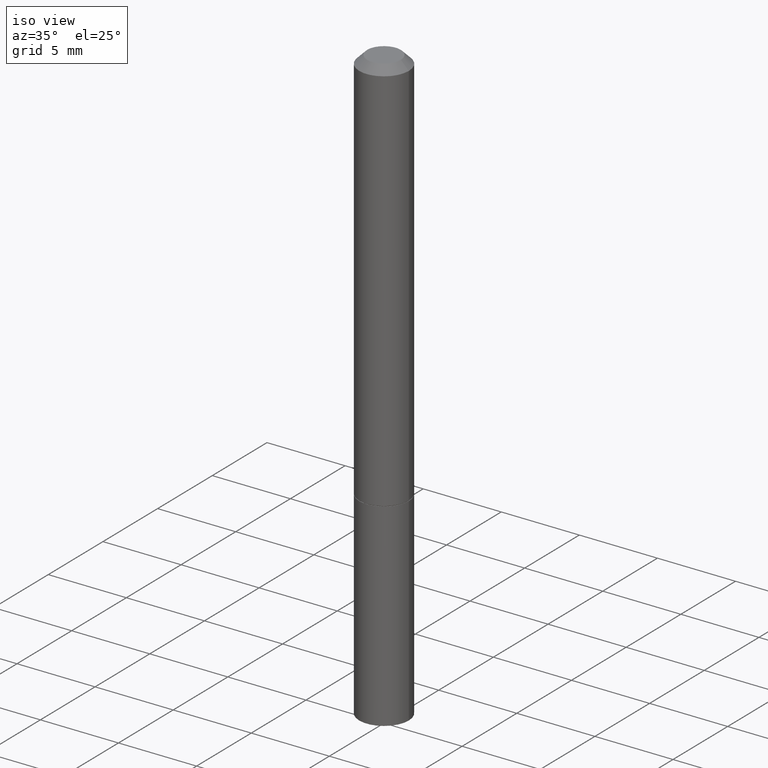
[diagram: clean part render]
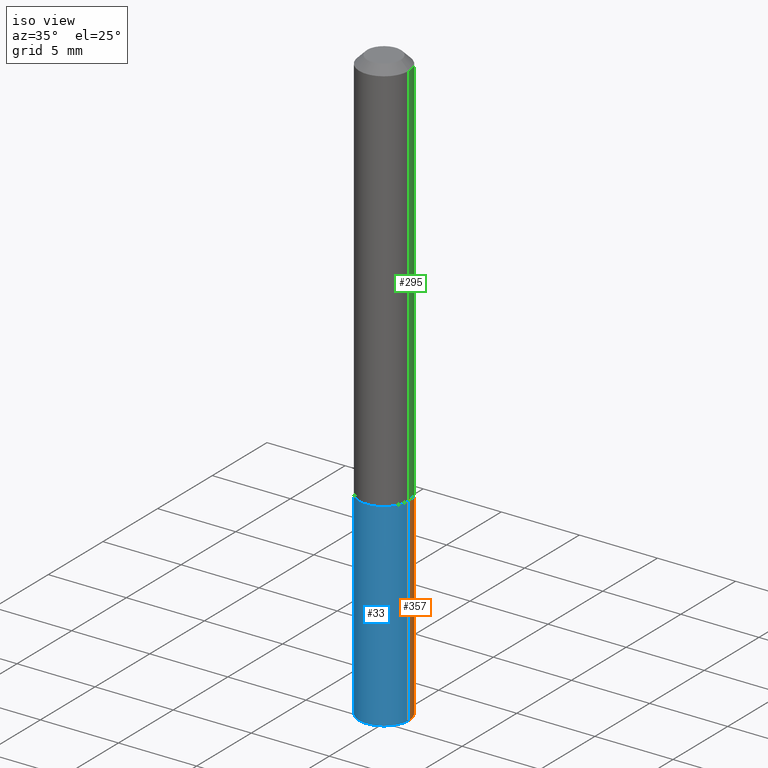
[diagram: same view with three faces highlighted in distinct colors, each labeled with its STEP entity id]
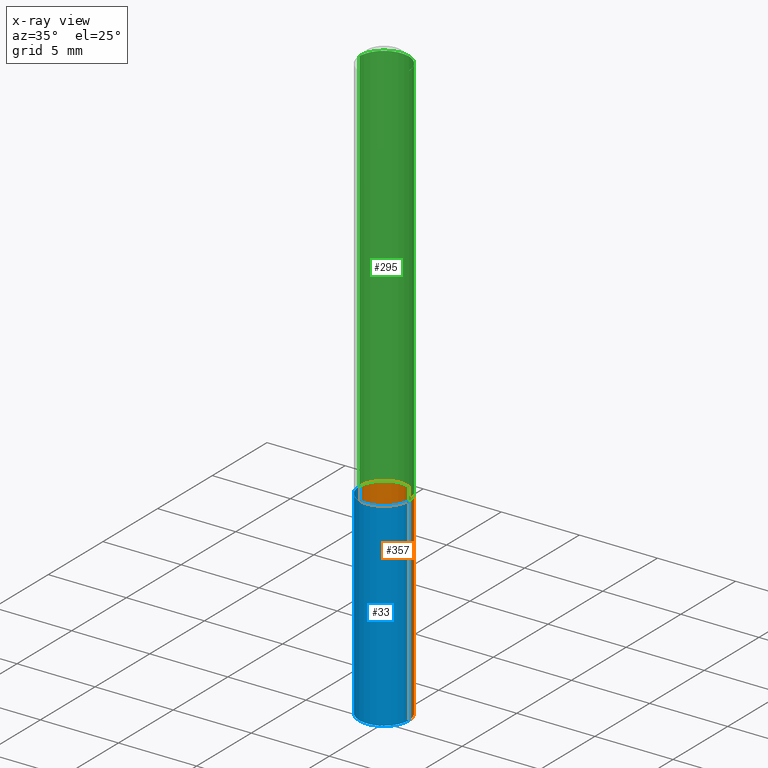
[diagram: x-ray of the same camera — body ghosted, the three highlighted faces saturated]
A machine part, iso view with three faces highlighted in distinct colors.
The next image is the same camera in x-ray (body ghosted, the three faces saturated) — at least one of them is partly hidden behind the body in this view.
Their STEP definitions:

[orange] entity #357 — the highlighted cylindrical surface (edge-blend (fillet) strip) has radius 1.5875 mm, axis along (-0, 0, 1).
#3 = LINE ( 'NONE', #30, #105 ) ;
#6 = DIRECTION ( 'NONE',  ( 1.000000000000000000, -6.982962677686267499E-15, 4.876176775795935793E-29 ) ) ;
#26 = FACE_OUTER_BOUND ( 'NONE', #73, .T. ) ;
#30 = CARTESIAN_POINT ( 'NONE',  ( -0.06250000000000001388, 4.440892098500627148E-16, -3.074334431409317165E-30 ) ) ;
#34 = DIRECTION ( 'NONE',  ( -2.445468806185136597E-29, 3.491481338843145583E-15, 1.000000000000000000 ) ) ;
#35 = CARTESIAN_POINT ( 'NONE',  ( 0.06250000000000001388, -3.927916506198537646E-15, -1.000000000000000222 ) ) ;
#41 = VERTEX_POINT ( 'NONE', #35 ) ;
#44 = CARTESIAN_POINT ( 'NONE',  ( -0.06250000000000001388, -3.920262463703869855E-15, -1.000000000000000222 ) ) ;
#47 = ORIENTED_EDGE ( 'NONE', *, *, #307, .F. ) ;
#63 = DIRECTION ( 'NONE',  ( -2.445468806185136597E-29, 3.491481338843145583E-15, 1.000000000000000000 ) ) ;
#72 = VERTEX_POINT ( 'NONE', #347 ) ;
#73 = EDGE_LOOP ( 'NONE', ( #332, #92, #47, #86 ) ) ;
#86 = ORIENTED_EDGE ( 'NONE', *, *, #100, .F. ) ;
#90 = DIRECTION ( 'NONE',  ( -2.445468806185136877E-29, 3.491481338843145188E-15, 1.000000000000000000 ) ) ;
#92 = ORIENTED_EDGE ( 'NONE', *, *, #225, .T. ) ;
#97 = CARTESIAN_POINT ( 'NONE',  ( 0.06250000000000001388, -4.364351673553918173E-16, 3.047610484872460571E-30 ) ) ;
#100 = EDGE_CURVE ( 'NONE', #294, #41, #149, .T. ) ;
#105 = VECTOR ( 'NONE', #145, 39.37007874015748143 ) ;
#132 = DIRECTION ( 'NONE',  ( -2.445468806185136597E-29, 3.491481338843145583E-15, 1.000000000000000000 ) ) ;
#145 = DIRECTION ( 'NONE',  ( -2.445468806185136877E-29, 3.491481338843145188E-15, 1.000000000000000000 ) ) ;
#149 = LINE ( 'NONE', #97, #150 ) ;
#150 = VECTOR ( 'NONE', #90, 39.37007874015748143 ) ;
#171 = VERTEX_POINT ( 'NONE', #44 ) ;
#177 = DIRECTION ( 'NONE',  ( 1.000000000000000000, -6.982962677686261189E-15, 0.000000000000000000 ) ) ;
#186 = AXIS2_PLACEMENT_3D ( 'NONE', #266, #63, #177 ) ;
#205 = DIRECTION ( 'NONE',  ( 1.000000000000000000, -6.982962677686269077E-15, 0.000000000000000000 ) ) ;
#225 = EDGE_CURVE ( 'NONE', #72, #171, #3, .T. ) ;
#233 = CYLINDRICAL_SURFACE ( 'NONE', #310, 0.06250000000000001388 ) ;
#238 = CIRCLE ( 'NONE', #186, 0.06250000000000001388 ) ;
#251 = EDGE_CURVE ( 'NONE', #294, #72, #238, .T. ) ;
#266 = CARTESIAN_POINT ( 'NONE',  ( 3.668203209277704895E-29, -5.237222008264718177E-15, -1.500000000000000222 ) ) ;
#271 = AXIS2_PLACEMENT_3D ( 'NONE', #331, #132, #205 ) ;
#294 = VERTEX_POINT ( 'NONE', #304 ) ;
#297 = CIRCLE ( 'NONE', #271, 0.06250000000000001388 ) ;
#304 = CARTESIAN_POINT ( 'NONE',  ( 0.06250000000000001388, -5.673657175620109846E-15, -1.500000000000000222 ) ) ;
#307 = EDGE_CURVE ( 'NONE', #41, #171, #297, .T. ) ;
#310 = AXIS2_PLACEMENT_3D ( 'NONE', #334, #34, #6 ) ;
#331 = CARTESIAN_POINT ( 'NONE',  ( 2.445468806185136877E-29, -3.491481338843145977E-15, -1.000000000000000222 ) ) ;
#332 = ORIENTED_EDGE ( 'NONE', *, *, #251, .T. ) ;
#334 = CARTESIAN_POINT ( 'NONE',  ( 0.000000000000000000, 0.000000000000000000, 0.000000000000000000 ) ) ;
#347 = CARTESIAN_POINT ( 'NONE',  ( -0.06250000000000001388, -3.920262463703869855E-15, -1.500000000000000222 ) ) ;
#357 = ADVANCED_FACE ( 'NONE', ( #26 ), #233, .T. ) ;

[blue] entity #33 — the highlighted cylindrical surface (edge-blend (fillet) strip) has radius 1.5875 mm, axis along (-0, 0, 1).
#3 = LINE ( 'NONE', #30, #105 ) ;
#30 = CARTESIAN_POINT ( 'NONE',  ( -0.06250000000000001388, 4.440892098500627148E-16, -3.074334431409317165E-30 ) ) ;
#33 = ADVANCED_FACE ( 'NONE', ( #68 ), #94, .T. ) ;
#35 = CARTESIAN_POINT ( 'NONE',  ( 0.06250000000000001388, -3.927916506198537646E-15, -1.000000000000000222 ) ) ;
#41 = VERTEX_POINT ( 'NONE', #35 ) ;
#44 = CARTESIAN_POINT ( 'NONE',  ( -0.06250000000000001388, -3.920262463703869855E-15, -1.000000000000000222 ) ) ;
#53 = ORIENTED_EDGE ( 'NONE', *, *, #259, .F. ) ;
#59 = CARTESIAN_POINT ( 'NONE',  ( 0.000000000000000000, 0.000000000000000000, 0.000000000000000000 ) ) ;
#62 = ORIENTED_EDGE ( 'NONE', *, *, #114, .T. ) ;
#68 = FACE_OUTER_BOUND ( 'NONE', #158, .T. ) ;
#72 = VERTEX_POINT ( 'NONE', #347 ) ;
#74 = AXIS2_PLACEMENT_3D ( 'NONE', #59, #285, #120 ) ;
#90 = DIRECTION ( 'NONE',  ( -2.445468806185136877E-29, 3.491481338843145188E-15, 1.000000000000000000 ) ) ;
#94 = CYLINDRICAL_SURFACE ( 'NONE', #74, 0.06250000000000001388 ) ;
#97 = CARTESIAN_POINT ( 'NONE',  ( 0.06250000000000001388, -4.364351673553918173E-16, 3.047610484872460571E-30 ) ) ;
#100 = EDGE_CURVE ( 'NONE', #294, #41, #149, .T. ) ;
#105 = VECTOR ( 'NONE', #145, 39.37007874015748143 ) ;
#107 = DIRECTION ( 'NONE',  ( 1.000000000000000000, -6.982962677686269077E-15, 0.000000000000000000 ) ) ;
#114 = EDGE_CURVE ( 'NONE', #72, #294, #195, .T. ) ;
#120 = DIRECTION ( 'NONE',  ( 1.000000000000000000, -6.982962677686267499E-15, 4.876176775795935793E-29 ) ) ;
#124 = DIRECTION ( 'NONE',  ( -2.445468806185136597E-29, 3.491481338843145583E-15, 1.000000000000000000 ) ) ;
#138 = AXIS2_PLACEMENT_3D ( 'NONE', #306, #265, #172 ) ;
#145 = DIRECTION ( 'NONE',  ( -2.445468806185136877E-29, 3.491481338843145188E-15, 1.000000000000000000 ) ) ;
#149 = LINE ( 'NONE', #97, #150 ) ;
#150 = VECTOR ( 'NONE', #90, 39.37007874015748143 ) ;
#158 = EDGE_LOOP ( 'NONE', ( #313, #62, #216, #53 ) ) ;
#171 = VERTEX_POINT ( 'NONE', #44 ) ;
#172 = DIRECTION ( 'NONE',  ( 1.000000000000000000, -6.982962677686261189E-15, 0.000000000000000000 ) ) ;
#180 = CARTESIAN_POINT ( 'NONE',  ( 2.445468806185136877E-29, -3.491481338843145977E-15, -1.000000000000000222 ) ) ;
#195 = CIRCLE ( 'NONE', #138, 0.06250000000000001388 ) ;
#209 = CIRCLE ( 'NONE', #303, 0.06250000000000001388 ) ;
#216 = ORIENTED_EDGE ( 'NONE', *, *, #100, .T. ) ;
#225 = EDGE_CURVE ( 'NONE', #72, #171, #3, .T. ) ;
#259 = EDGE_CURVE ( 'NONE', #171, #41, #209, .T. ) ;
#265 = DIRECTION ( 'NONE',  ( -2.445468806185136597E-29, 3.491481338843145583E-15, 1.000000000000000000 ) ) ;
#285 = DIRECTION ( 'NONE',  ( -2.445468806185136597E-29, 3.491481338843145583E-15, 1.000000000000000000 ) ) ;
#294 = VERTEX_POINT ( 'NONE', #304 ) ;
#303 = AXIS2_PLACEMENT_3D ( 'NONE', #180, #124, #107 ) ;
#304 = CARTESIAN_POINT ( 'NONE',  ( 0.06250000000000001388, -5.673657175620109846E-15, -1.500000000000000222 ) ) ;
#306 = CARTESIAN_POINT ( 'NONE',  ( 3.668203209277704895E-29, -5.237222008264718177E-15, -1.500000000000000222 ) ) ;
#313 = ORIENTED_EDGE ( 'NONE', *, *, #225, .F. ) ;
#347 = CARTESIAN_POINT ( 'NONE',  ( -0.06250000000000001388, -3.920262463703869855E-15, -1.500000000000000222 ) ) ;

[green] entity #295 — the highlighted cylindrical surface (edge-blend (fillet) strip) has radius 1.5875 mm, axis along (-0, 0, 1).
#21 = VERTEX_POINT ( 'NONE', #155 ) ;
#25 = VERTEX_POINT ( 'NONE', #166 ) ;
#49 = CARTESIAN_POINT ( 'NONE',  ( 4.890937612370282792E-31, -6.982962677686303935E-17, -0.02000000000000003858 ) ) ;
#54 = LINE ( 'NONE', #134, #327 ) ;
#56 = FACE_OUTER_BOUND ( 'NONE', #355, .T. ) ;
#67 = DIRECTION ( 'NONE',  ( -2.445468806185136877E-29, 3.491481338843145188E-15, 1.000000000000000000 ) ) ;
#77 = DIRECTION ( 'NONE',  ( -2.445468806185136877E-29, 3.491481338843145188E-15, 1.000000000000000000 ) ) ;
#112 = DIRECTION ( 'NONE',  ( -2.445468806185136597E-29, 3.491481338843145583E-15, 1.000000000000000000 ) ) ;
#115 = DIRECTION ( 'NONE',  ( 1.000000000000000000, -6.982962677686265133E-15, 0.000000000000000000 ) ) ;
#119 = AXIS2_PLACEMENT_3D ( 'NONE', #49, #359, #277 ) ;
#134 = CARTESIAN_POINT ( 'NONE',  ( -0.06249999999999993061, 4.440892098500621231E-16, -3.074334431409312610E-30 ) ) ;
#137 = ORIENTED_EDGE ( 'NONE', *, *, #342, .T. ) ;
#140 = VECTOR ( 'NONE', #67, 39.37007874015748143 ) ;
#142 = CARTESIAN_POINT ( 'NONE',  ( 2.443023337378951835E-29, -3.487989857504302970E-15, -0.9990000000000002212 ) ) ;
#155 = CARTESIAN_POINT ( 'NONE',  ( 0.06249999999999997918, -3.924425024859694639E-15, -0.9990000000000002212 ) ) ;
#166 = CARTESIAN_POINT ( 'NONE',  ( -0.06249999999999999306, -1.334820532290518940E-15, -0.9990000000000002212 ) ) ;
#175 = CIRCLE ( 'NONE', #119, 0.06249999999999988204 ) ;
#184 = EDGE_CURVE ( 'NONE', #21, #234, #206, .T. ) ;
#189 = AXIS2_PLACEMENT_3D ( 'NONE', #142, #257, #115 ) ;
#190 = ORIENTED_EDGE ( 'NONE', *, *, #317, .F. ) ;
#206 = LINE ( 'NONE', #211, #140 ) ;
#211 = CARTESIAN_POINT ( 'NONE',  ( 0.06249999999999993061, -4.364351673553911764E-16, 3.047610484872456367E-30 ) ) ;
#231 = CYLINDRICAL_SURFACE ( 'NONE', #348, 0.06249999999999993061 ) ;
#234 = VERTEX_POINT ( 'NONE', #311 ) ;
#257 = DIRECTION ( 'NONE',  ( -2.445468806185136597E-29, 3.491481338843145583E-15, 1.000000000000000000 ) ) ;
#264 = ORIENTED_EDGE ( 'NONE', *, *, #184, .F. ) ;
#273 = CARTESIAN_POINT ( 'NONE',  ( -0.06249999999999988204, 3.666055405785277796E-16, -0.02000000000000003858 ) ) ;
#277 = DIRECTION ( 'NONE',  ( 1.000000000000000000, -6.982962677686266711E-15, 0.000000000000000000 ) ) ;
#295 = ADVANCED_FACE ( 'NONE', ( #56 ), #231, .T. ) ;
#301 = ORIENTED_EDGE ( 'NONE', *, *, #319, .T. ) ;
#311 = CARTESIAN_POINT ( 'NONE',  ( 0.06249999999999988204, -4.986107516375829362E-16, -0.02000000000000003858 ) ) ;
#317 = EDGE_CURVE ( 'NONE', #234, #365, #175, .T. ) ;
#319 = EDGE_CURVE ( 'NONE', #25, #365, #54, .T. ) ;
#327 = VECTOR ( 'NONE', #77, 39.37007874015748143 ) ;
#328 = DIRECTION ( 'NONE',  ( 1.000000000000000000, -6.982962677686266711E-15, 4.876176775795935793E-29 ) ) ;
#342 = EDGE_CURVE ( 'NONE', #21, #25, #356, .T. ) ;
#348 = AXIS2_PLACEMENT_3D ( 'NONE', #364, #112, #328 ) ;
#355 = EDGE_LOOP ( 'NONE', ( #137, #301, #190, #264 ) ) ;
#356 = CIRCLE ( 'NONE', #189, 0.06249999999999997918 ) ;
#359 = DIRECTION ( 'NONE',  ( -2.445468806185136597E-29, 3.491481338843145583E-15, 1.000000000000000000 ) ) ;
#364 = CARTESIAN_POINT ( 'NONE',  ( 0.000000000000000000, 0.000000000000000000, 0.000000000000000000 ) ) ;
#365 = VERTEX_POINT ( 'NONE', #273 ) ;